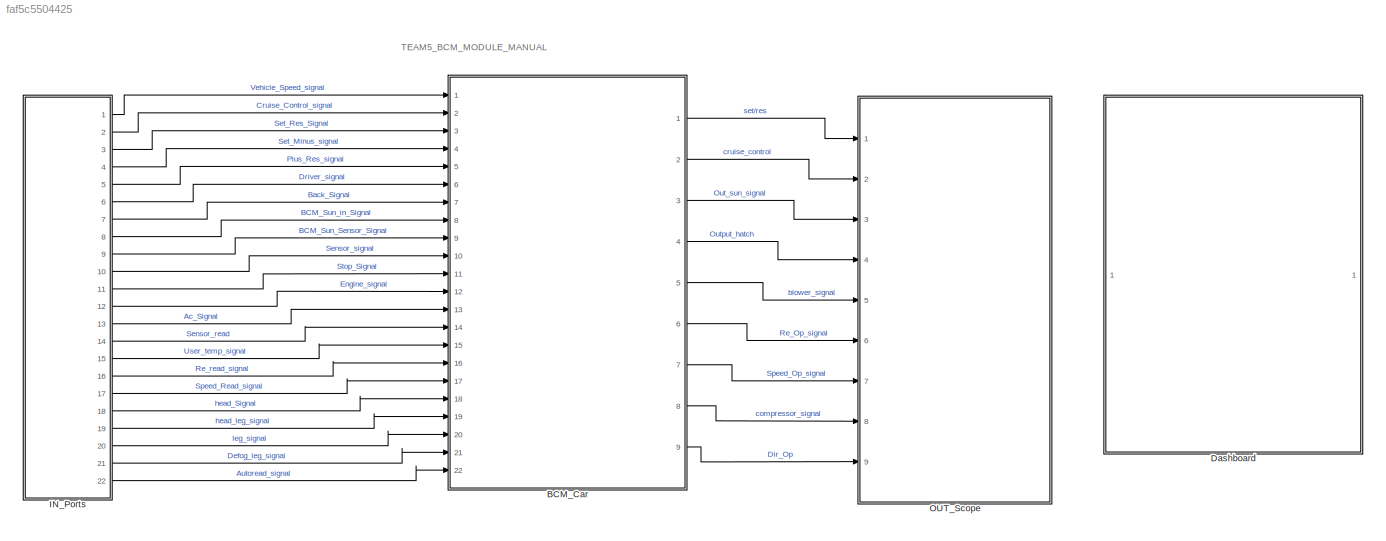
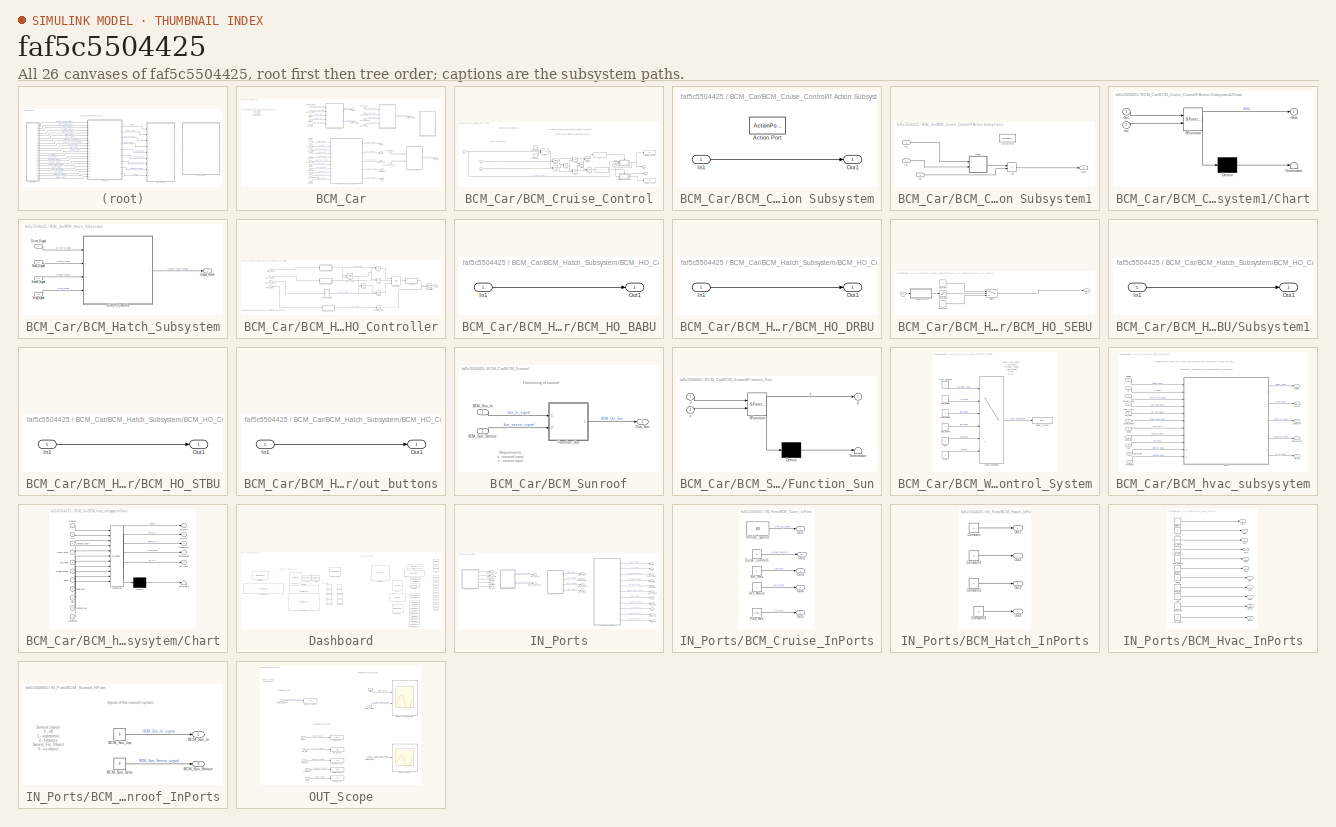
[diagram: thumbnail index - all 26 canvases of the model, root first then tree order]
MODEL slx_faf5c5504425
KIND model
CONFIG AbsTol = auto
CONFIG EnableMultiTasking = off
CONFIG FixedStep = auto
CONFIG MaxStep = auto
CONFIG MinStep = auto
CONFIG RelTol = 1e-3
CONFIG SampleTimeConstraint = Unconstrained
CONFIG SolverName = VariableStepAuto
CONFIG StartTime = 0.0
CONFIG StopTime = inf
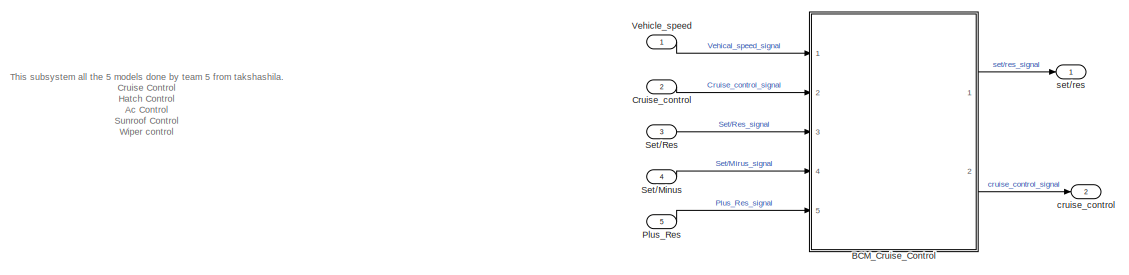
[diagram: BCM_Car - part 1/2, top left region]
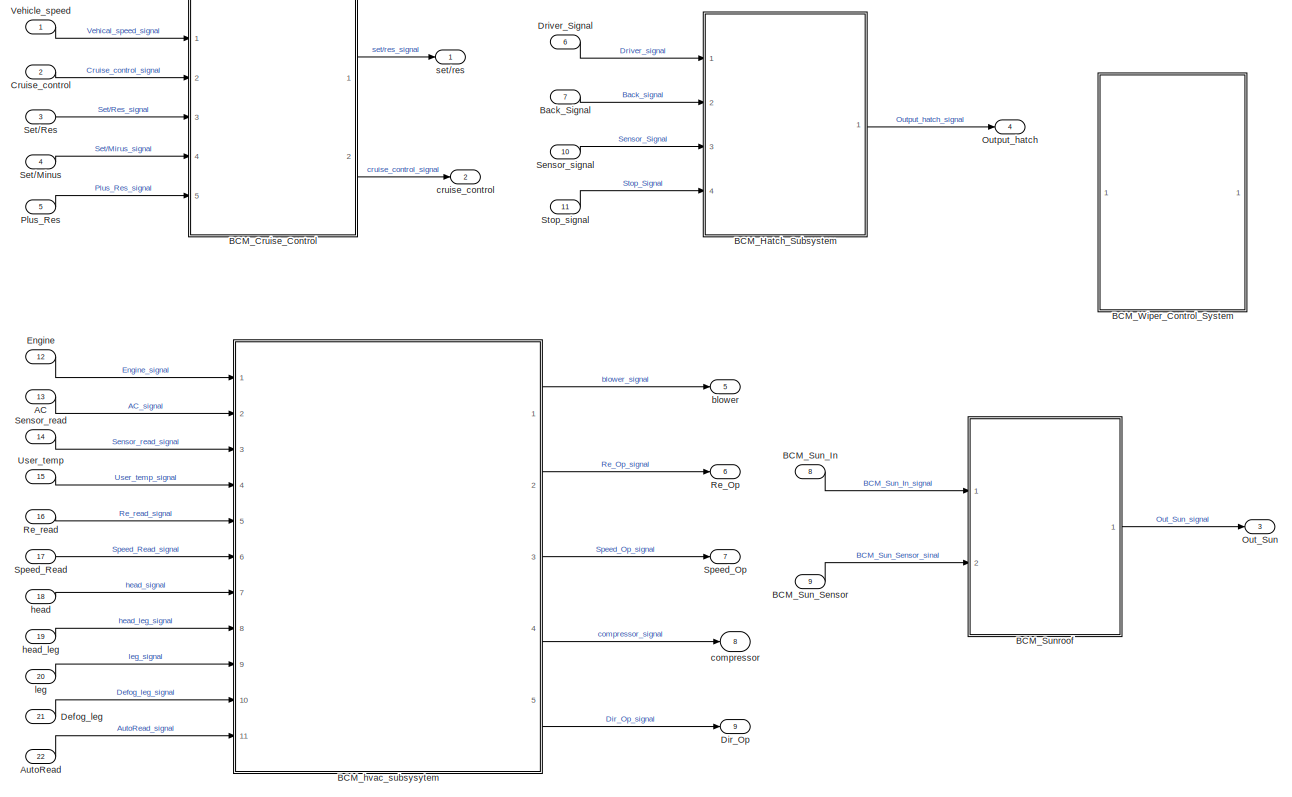
[diagram: BCM_Car - part 2/2, center side, full height]
BLOCK [SubSystem] BCM_Car
  Ports = [22, 9]
  RequestExecContextInheritance = off
BLOCK [Inport] BCM_Car/AC
  Port = 13
BLOCK [Inport] BCM_Car/AutoRead
  Port = 22
BLOCK [SubSystem] BCM_Car/BCM_Cruise_Control
  Ports = [5, 2]
  RequestExecContextInheritance = off
BLOCK [Logic] BCM_Car/BCM_Cruise_Control/AND
  AllPortsSameDT = off
  IconShape = distinctive
  OutDataTypeStr = boolean
  Ports = [2, 1]
BLOCK [Logic] BCM_Car/BCM_Cruise_Control/AND1
  AllPortsSameDT = off
  IconShape = distinctive
  OutDataTypeStr = boolean
  Ports = [2, 1]
BLOCK [Logic] BCM_Car/BCM_Cruise_Control/AND2
  AllPortsSameDT = off
  IconShape = distinctive
  OutDataTypeStr = boolean
  Ports = [2, 1]
BLOCK [Logic] BCM_Car/BCM_Cruise_Control/AND3
  AllPortsSameDT = off
  IconShape = distinctive
  OutDataTypeStr = boolean
  Ports = [2, 1]
BLOCK [Logic] BCM_Car/BCM_Cruise_Control/AND4
  AllPortsSameDT = off
  IconShape = distinctive
  OutDataTypeStr = boolean
  Ports = [2, 1]
BLOCK [Logic] BCM_Car/BCM_Cruise_Control/AND5
  AllPortsSameDT = off
  IconShape = distinctive
  OutDataTypeStr = boolean
  Ports = [2, 1]
BLOCK [Constant] BCM_Car/BCM_Cruise_Control/Constant2
BLOCK [Constant] BCM_Car/BCM_Cruise_Control/Constant4
  Value = 0
BLOCK [Display] BCM_Car/BCM_Cruise_Control/Display_Test1
  Decimation = 1
  Ports = [1]
BLOCK [Display] BCM_Car/BCM_Cruise_Control/Display_Test2
  Decimation = 1
  Ports = [1]
BLOCK [If] BCM_Car/BCM_Cruise_Control/If
  IfExpression = u1 == 1
  Ports = [1, 1]
  ShowElse = off
BLOCK [SubSystem] BCM_Car/BCM_Cruise_Control/If Action Subsystem
  Ports = [1, 1, 0, 0, 0, 0, 0, 1]
  RequestExecContextInheritance = off
  TreatAsAtomicUnit = on
BLOCK [ActionPort] BCM_Car/BCM_Cruise_Control/If Action Subsystem/Action Port
  ActionPortLabel = if(u1 == 1)
BLOCK [Inport] BCM_Car/BCM_Cruise_Control/If Action Subsystem/In1
BLOCK [Outport] BCM_Car/BCM_Cruise_Control/If Action Subsystem/Out1
BLOCK [SubSystem] BCM_Car/BCM_Cruise_Control/If Action Subsystem1
  Ports = [3, 1, 0, 0, 0, 0, 0, 1]
  RequestExecContextInheritance = off
  TreatAsAtomicUnit = on
BLOCK [ActionPort] BCM_Car/BCM_Cruise_Control/If Action Subsystem1/Action Port
  ActionPortLabel = if(u1 == 1)
BLOCK [Sum] BCM_Car/BCM_Cruise_Control/If Action Subsystem1/Add
  IconShape = rectangular
  Ports = [2, 1]
BLOCK [SubSystem] BCM_Car/BCM_Cruise_Control/If Action Subsystem1/Chart
  ErrorFcn = Stateflow.Translate.translate
  PermitHierarchicalResolution = ExplicitOnly
  Ports = [2, 1]
  RequestExecContextInheritance = off
  SFBlockType = Chart
  TreatAsAtomicUnit = on
BLOCK [Demux] BCM_Car/BCM_Cruise_Control/If Action Subsystem1/Chart/ Demux 
  Outputs = 1
  Ports = [1, 1]
BLOCK [S-Function] BCM_Car/BCM_Cruise_Control/If Action Subsystem1/Chart/ SFunction 
  EnableBusSupport = on
  FunctionName = sf_sfun
  PortCounts = [2 2]
  Ports = [2, 2]
  SFcnIsStateOwnerBlock = off
  SFunctionDeploymentMode = off
  Tag = Stateflow S-Function 1
BLOCK [Terminator] BCM_Car/BCM_Cruise_Control/If Action Subsystem1/Chart/ Terminator 
BLOCK [Outport] BCM_Car/BCM_Cruise_Control/If Action Subsystem1/Chart/data
BLOCK [Inport] BCM_Car/BCM_Cruise_Control/If Action Subsystem1/Chart/dec
BLOCK [Inport] BCM_Car/BCM_Cruise_Control/If Action Subsystem1/Chart/inc
  Port = 2
BLOCK [Inport] BCM_Car/BCM_Cruise_Control/If Action Subsystem1/In1
BLOCK [Inport] BCM_Car/BCM_Cruise_Control/If Action Subsystem1/In2
  Port = 2
BLOCK [Inport] BCM_Car/BCM_Cruise_Control/If Action Subsystem1/In3
  Port = 3
BLOCK [Outport] BCM_Car/BCM_Cruise_Control/If Action Subsystem1/Out1
BLOCK [If] BCM_Car/BCM_Cruise_Control/If1
  IfExpression = u1 == 1
  Ports = [1, 1]
  ShowElse = off
BLOCK [Inport] BCM_Car/BCM_Cruise_Control/In1
BLOCK [Inport] BCM_Car/BCM_Cruise_Control/In2
  Port = 2
BLOCK [Inport] BCM_Car/BCM_Cruise_Control/In3
  Port = 3
BLOCK [Inport] BCM_Car/BCM_Cruise_Control/In4
  Port = 4
BLOCK [Inport] BCM_Car/BCM_Cruise_Control/In5
  Port = 5
BLOCK [Logic] BCM_Car/BCM_Cruise_Control/OR
  AllPortsSameDT = off
  IconShape = distinctive
  Operator = OR
  OutDataTypeStr = boolean
  Ports = [2, 1]
BLOCK [Outport] BCM_Car/BCM_Cruise_Control/Out1
BLOCK [Outport] BCM_Car/BCM_Cruise_Control/Out2
  Port = 2
BLOCK [Switch] BCM_Car/BCM_Cruise_Control/Switch
  InputSameDT = off
  SaturateOnIntegerOverflow = off
  Threshold = 40
BLOCK [Logic] BCM_Car/BCM_Cruise_Control/XOR
  AllPortsSameDT = off
  IconShape = distinctive
  Operator = XOR
  OutDataTypeStr = boolean
  Ports = [2, 1]
BLOCK [SubSystem] BCM_Car/BCM_Hatch_Subsystem
  Ports = [4, 1]
  RequestExecContextInheritance = off
BLOCK [SubSystem] BCM_Car/BCM_Hatch_Subsystem/BCM_HO_Controller
  Ports = [4, 1]
  RequestExecContextInheritance = off
BLOCK [Logic] BCM_Car/BCM_Hatch_Subsystem/BCM_HO_Controller/AND
  AllPortsSameDT = off
  IconShape = distinctive
  OutDataTypeStr = boolean
  Ports = [2, 1]
BLOCK [Logic] BCM_Car/BCM_Hatch_Subsystem/BCM_HO_Controller/AND1
  AllPortsSameDT = off
  IconShape = distinctive
  OutDataTypeStr = boolean
  Ports = [2, 1]
BLOCK [Logic] BCM_Car/BCM_Hatch_Subsystem/BCM_HO_Controller/AND2
  AllPortsSameDT = off
  IconShape = distinctive
  OutDataTypeStr = boolean
  Ports = [2, 1]
BLOCK [SubSystem] BCM_Car/BCM_Hatch_Subsystem/BCM_HO_Controller/BCM_HO_BABU
  Ports = [1, 1]
  RequestExecContextInheritance = off
BLOCK [Inport] BCM_Car/BCM_Hatch_Subsystem/BCM_HO_Controller/BCM_HO_BABU/In1
BLOCK [Outport] BCM_Car/BCM_Hatch_Subsystem/BCM_HO_Controller/BCM_HO_BABU/Out1
BLOCK [SubSystem] BCM_Car/BCM_Hatch_Subsystem/BCM_HO_Controller/BCM_HO_DRBU
  Ports = [1, 1]
  RequestExecContextInheritance = off
BLOCK [Inport] BCM_Car/BCM_Hatch_Subsystem/BCM_HO_Controller/BCM_HO_DRBU/In1
BLOCK [Outport] BCM_Car/BCM_Hatch_Subsystem/BCM_HO_Controller/BCM_HO_DRBU/Out1
BLOCK [SubSystem] BCM_Car/BCM_Hatch_Subsystem/BCM_HO_Controller/BCM_HO_SEBU
  Ports = [1, 1]
  RequestExecContextInheritance = off
BLOCK [Constant] BCM_Car/BCM_Hatch_Subsystem/BCM_HO_Controller/BCM_HO_SEBU/Constant1
BLOCK [Constant] BCM_Car/BCM_Hatch_Subsystem/BCM_HO_Controller/BCM_HO_SEBU/Constant2
  Value = 0
BLOCK [Inport] BCM_Car/BCM_Hatch_Subsystem/BCM_HO_Controller/BCM_HO_SEBU/In1
BLOCK [Outport] BCM_Car/BCM_Hatch_Subsystem/BCM_HO_Controller/BCM_HO_SEBU/Out1
BLOCK [Saturate] BCM_Car/BCM_Hatch_Subsystem/BCM_HO_Controller/BCM_HO_SEBU/Saturation
  LowerLimit = 0
  UpperLimit = 3.6
BLOCK [SubSystem] BCM_Car/BCM_Hatch_Subsystem/BCM_HO_Controller/BCM_HO_SEBU/Subsystem1
  Ports = [1, 1]
  RequestExecContextInheritance = off
BLOCK [Inport] BCM_Car/BCM_Hatch_Subsystem/BCM_HO_Controller/BCM_HO_SEBU/Subsystem1/In1
BLOCK [Outport] BCM_Car/BCM_Hatch_Subsystem/BCM_HO_Controller/BCM_HO_SEBU/Subsystem1/Out1
BLOCK [Switch] BCM_Car/BCM_Hatch_Subsystem/BCM_HO_Controller/BCM_HO_SEBU/Switch
  Criteria = u2 > Threshold
  InputSameDT = off
  SaturateOnIntegerOverflow = off
  Threshold = 2.3
BLOCK [SubSystem] BCM_Car/BCM_Hatch_Subsystem/BCM_HO_Controller/BCM_HO_STBU
  Ports = [1, 1]
  RequestExecContextInheritance = off
BLOCK [Inport] BCM_Car/BCM_Hatch_Subsystem/BCM_HO_Controller/BCM_HO_STBU/In1
BLOCK [Outport] BCM_Car/BCM_Hatch_Subsystem/BCM_HO_Controller/BCM_HO_STBU/Out1
BLOCK [Inport] BCM_Car/BCM_Hatch_Subsystem/BCM_HO_Controller/Back_Signal
  Port = 2
BLOCK [Logic] BCM_Car/BCM_Hatch_Subsystem/BCM_HO_Controller/Condition_Stop
  AllPortsSameDT = off
  IconShape = distinctive
  Operator = NOT
  OutDataTypeStr = boolean
  Ports = [1, 1]
BLOCK [Inport] BCM_Car/BCM_Hatch_Subsystem/BCM_HO_Controller/Driver_Signal
BLOCK [Outport] BCM_Car/BCM_Hatch_Subsystem/BCM_HO_Controller/Out1
BLOCK [Logic] BCM_Car/BCM_Hatch_Subsystem/BCM_HO_Controller/Out_Buttons
  AllPortsSameDT = off
  IconShape = distinctive
  Inputs = 3
  Operator = OR
  OutDataTypeStr = boolean
  Ports = [3, 1]
BLOCK [Inport] BCM_Car/BCM_Hatch_Subsystem/BCM_HO_Controller/Sensor_signal
  Port = 3
BLOCK [Logic] BCM_Car/BCM_Hatch_Subsystem/BCM_HO_Controller/Stop_button_condition
  AllPortsSameDT = off
  IconShape = distinctive
  OutDataTypeStr = boolean
  Ports = [2, 1]
BLOCK [Inport] BCM_Car/BCM_Hatch_Subsystem/BCM_HO_Controller/Stop_signal
  Port = 4
BLOCK [Logic] BCM_Car/BCM_Hatch_Subsystem/BCM_HO_Controller/XOR
  AllPortsSameDT = off
  IconShape = distinctive
  Operator = XOR
  OutDataTypeStr = boolean
  Ports = [2, 1]
BLOCK [Logic] BCM_Car/BCM_Hatch_Subsystem/BCM_HO_Controller/XOR1
  AllPortsSameDT = off
  IconShape = distinctive
  Operator = XOR
  OutDataTypeStr = boolean
  Ports = [2, 1]
BLOCK [SubSystem] BCM_Car/BCM_Hatch_Subsystem/BCM_HO_Controller/out_buttons
  Ports = [1, 1]
  RequestExecContextInheritance = off
BLOCK [Inport] BCM_Car/BCM_Hatch_Subsystem/BCM_HO_Controller/out_buttons/In1
BLOCK [Outport] BCM_Car/BCM_Hatch_Subsystem/BCM_HO_Controller/out_buttons/Out1
BLOCK [Inport] BCM_Car/BCM_Hatch_Subsystem/Back_Signal
  Port = 2
BLOCK [Inport] BCM_Car/BCM_Hatch_Subsystem/Driver_Signal
BLOCK [Outport] BCM_Car/BCM_Hatch_Subsystem/Output_Hatch
BLOCK [Inport] BCM_Car/BCM_Hatch_Subsystem/Sensor_signal
  Port = 3
BLOCK [Inport] BCM_Car/BCM_Hatch_Subsystem/Stop_signal
  Port = 4
BLOCK [Inport] BCM_Car/BCM_Sun_In
  Port = 8
BLOCK [Inport] BCM_Car/BCM_Sun_Sensor
  Port = 9
BLOCK [SubSystem] BCM_Car/BCM_Sunroof
  Ports = [2, 1]
  RequestExecContextInheritance = off
BLOCK [Inport] BCM_Car/BCM_Sunroof/BCM_Sun_In
BLOCK [Inport] BCM_Car/BCM_Sunroof/BCM_Sun_Sensor
  Port = 2
BLOCK [SubSystem] BCM_Car/BCM_Sunroof/Function_Sun
  ErrorFcn = Stateflow.Translate.translate
  PermitHierarchicalResolution = ExplicitOnly
  Ports = [2, 1]
  RequestExecContextInheritance = off
  SFBlockType = MATLAB Function
  TreatAsAtomicUnit = on
BLOCK [Demux] BCM_Car/BCM_Sunroof/Function_Sun/ Demux 
  Outputs = 1
  Ports = [1, 1]
BLOCK [S-Function] BCM_Car/BCM_Sunroof/Function_Sun/ SFunction 
  EnableBusSupport = on
  FunctionName = sf_sfun
  PortCounts = [2 2]
  Ports = [2, 2]
  SFcnIsStateOwnerBlock = off
  SFunctionDeploymentMode = off
  Tag = Stateflow S-Function 2
BLOCK [Terminator] BCM_Car/BCM_Sunroof/Function_Sun/ Terminator 
BLOCK [Inport] BCM_Car/BCM_Sunroof/Function_Sun/u
BLOCK [Inport] BCM_Car/BCM_Sunroof/Function_Sun/v
  Port = 2
BLOCK [Outport] BCM_Car/BCM_Sunroof/Function_Sun/y
BLOCK [Outport] BCM_Car/BCM_Sunroof/Out_Sun
BLOCK [SubSystem] BCM_Car/BCM_Wiper_Control_System
  Ports = []
  RequestExecContextInheritance = off
BLOCK [Constant] BCM_Car/BCM_Wiper_Control_System/High_Speed
  Value = 3
BLOCK [Constant] BCM_Car/BCM_Wiper_Control_System/Input_Condition
BLOCK [Constant] BCM_Car/BCM_Wiper_Control_System/Low_Speed
BLOCK [Constant] BCM_Car/BCM_Wiper_Control_System/Med_Speed
  Value = 2
BLOCK [Constant] BCM_Car/BCM_Wiper_Control_System/Mist
  Value = 4
BLOCK [Constant] BCM_Car/BCM_Wiper_Control_System/Off
  Value = 5
BLOCK [MultiPortSwitch] BCM_Car/BCM_Wiper_Control_System/Wiper_Conditions
  InputSameDT = off
  Inputs = 5
  Ports = [6, 1]
  SaturateOnIntegerOverflow = off
BLOCK [Display] BCM_Car/BCM_Wiper_Control_System/Wiper_Output
  Decimation = 1
  Ports = [1]
BLOCK [SubSystem] BCM_Car/BCM_hvac_subsysytem
  Ports = [11, 5]
  RequestExecContextInheritance = off
BLOCK [Inport] BCM_Car/BCM_hvac_subsysytem/AC
  Port = 2
BLOCK [Inport] BCM_Car/BCM_hvac_subsysytem/AutoRead
  Port = 11
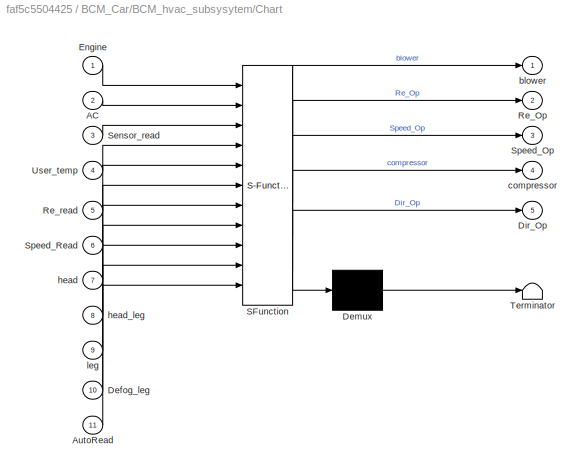
BLOCK [SubSystem] BCM_Car/BCM_hvac_subsysytem/Chart
  ErrorFcn = Stateflow.Translate.translate
  PermitHierarchicalResolution = ExplicitOnly
  Ports = [11, 5]
  RequestExecContextInheritance = off
  SFBlockType = Chart
  TreatAsAtomicUnit = on
BLOCK [Demux] BCM_Car/BCM_hvac_subsysytem/Chart/ Demux 
  Outputs = 1
  Ports = [1, 1]
BLOCK [S-Function] BCM_Car/BCM_hvac_subsysytem/Chart/ SFunction 
  EnableBusSupport = on
  FunctionName = sf_sfun
  PortCounts = [11 6]
  Ports = [11, 6]
  SFcnIsStateOwnerBlock = off
  SFunctionDeploymentMode = off
  Tag = Stateflow S-Function 3
BLOCK [Terminator] BCM_Car/BCM_hvac_subsysytem/Chart/ Terminator 
BLOCK [Inport] BCM_Car/BCM_hvac_subsysytem/Chart/AC
  Port = 2
BLOCK [Inport] BCM_Car/BCM_hvac_subsysytem/Chart/AutoRead
  Port = 11
BLOCK [Inport] BCM_Car/BCM_hvac_subsysytem/Chart/Defog_leg
  Port = 10
BLOCK [Outport] BCM_Car/BCM_hvac_subsysytem/Chart/Dir_Op
  Port = 5
BLOCK [Inport] BCM_Car/BCM_hvac_subsysytem/Chart/Engine
BLOCK [Outport] BCM_Car/BCM_hvac_subsysytem/Chart/Re_Op
  Port = 2
BLOCK [Inport] BCM_Car/BCM_hvac_subsysytem/Chart/Re_read
  Port = 5
BLOCK [Inport] BCM_Car/BCM_hvac_subsysytem/Chart/Sensor_read
  Port = 3
BLOCK [Outport] BCM_Car/BCM_hvac_subsysytem/Chart/Speed_Op
  Port = 3
BLOCK [Inport] BCM_Car/BCM_hvac_subsysytem/Chart/Speed_Read
  Port = 6
BLOCK [Inport] BCM_Car/BCM_hvac_subsysytem/Chart/User_temp
  Port = 4
BLOCK [Outport] BCM_Car/BCM_hvac_subsysytem/Chart/blower
BLOCK [Outport] BCM_Car/BCM_hvac_subsysytem/Chart/compressor
  Port = 4
BLOCK [Inport] BCM_Car/BCM_hvac_subsysytem/Chart/head
  Port = 7
BLOCK [Inport] BCM_Car/BCM_hvac_subsysytem/Chart/head_leg
  Port = 8
BLOCK [Inport] BCM_Car/BCM_hvac_subsysytem/Chart/leg
  Port = 9
BLOCK [Inport] BCM_Car/BCM_hvac_subsysytem/Defog_leg
  Port = 10
BLOCK [Outport] BCM_Car/BCM_hvac_subsysytem/Dir_Op
  Port = 5
BLOCK [Inport] BCM_Car/BCM_hvac_subsysytem/Engine
BLOCK [Outport] BCM_Car/BCM_hvac_subsysytem/Re-Op
  Port = 2
BLOCK [Inport] BCM_Car/BCM_hvac_subsysytem/Re_read
  Port = 5
BLOCK [Inport] BCM_Car/BCM_hvac_subsysytem/Sensor_read
  Port = 3
BLOCK [Outport] BCM_Car/BCM_hvac_subsysytem/Speed_OP
  Port = 3
BLOCK [Inport] BCM_Car/BCM_hvac_subsysytem/Speed_Read
  Port = 6
BLOCK [Inport] BCM_Car/BCM_hvac_subsysytem/User_temp
  Port = 4
BLOCK [Outport] BCM_Car/BCM_hvac_subsysytem/blower
BLOCK [Outport] BCM_Car/BCM_hvac_subsysytem/compressor
  Port = 4
BLOCK [Inport] BCM_Car/BCM_hvac_subsysytem/head
  Port = 7
BLOCK [Inport] BCM_Car/BCM_hvac_subsysytem/head_leg
  Port = 8
BLOCK [Inport] BCM_Car/BCM_hvac_subsysytem/leg
  Port = 9
BLOCK [Inport] BCM_Car/Back_Signal
  Port = 7
BLOCK [Inport] BCM_Car/Cruise_control
  Port = 2
BLOCK [Inport] BCM_Car/Defog_leg
  Port = 21
BLOCK [Outport] BCM_Car/Dir_Op
  Port = 9
BLOCK [Inport] BCM_Car/Driver_Signal
  Port = 6
BLOCK [Inport] BCM_Car/Engine
  Port = 12
BLOCK [Outport] BCM_Car/Out_Sun
  Port = 3
BLOCK [Outport] BCM_Car/Output_hatch
  Port = 4
BLOCK [Inport] BCM_Car/Plus_Res
  Port = 5
BLOCK [Outport] BCM_Car/Re_Op
  Port = 6
BLOCK [Inport] BCM_Car/Re_read
  Port = 16
BLOCK [Inport] BCM_Car/Sensor_read
  Port = 14
BLOCK [Inport] BCM_Car/Sensor_signal
  Port = 10
BLOCK [Inport] BCM_Car/Set//Minus
  Port = 4
BLOCK [Inport] BCM_Car/Set//Res
  Port = 3
BLOCK [Outport] BCM_Car/Speed_Op
  Port = 7
BLOCK [Inport] BCM_Car/Speed_Read
  Port = 17
BLOCK [Inport] BCM_Car/Stop_signal
  Port = 11
BLOCK [Inport] BCM_Car/User_temp
  Port = 15
BLOCK [Inport] BCM_Car/Vehicle_speed
BLOCK [Outport] BCM_Car/blower
  Port = 5
BLOCK [Outport] BCM_Car/compressor
  Port = 8
BLOCK [Outport] BCM_Car/cruise_control
  Port = 2
BLOCK [Inport] BCM_Car/head
  Port = 18
BLOCK [Inport] BCM_Car/head_leg
  Port = 19
BLOCK [Inport] BCM_Car/leg
  Port = 20
BLOCK [Outport] BCM_Car/set//res
BLOCK [SubSystem] Dashboard
  Ports = []
  RequestExecContextInheritance = off
BLOCK [DisplayBlock] Dashboard/Display5
  Format = short
  Transparency = 1
BLOCK [DisplayBlock] Dashboard/Display6
  Format = short
  Transparency = 1
BLOCK [CustomWebBlock] Dashboard/Horizontal Gauge
  Configuration = {"components":[{"name":"LinearScaleComponent","settings":{"bounds":{"max":15,"min":0,"tickInterval":"auto"},"internalTickHeightScaleFactor":0.5,"labelColor":[250,245,199],"labelFont":{"font":"Arial","fontSize":12},"labelTransparency":1,"needleImage":{"size":[21,75],"src":"data:image\/svg+xml;base64,PHN2ZyB4bWxucz0iaHR0cDovL3d3dy53My5vcmcvMjAwMC9zdmciIHhtbG5zOnhsaW5rPSJodHRwOi8vd3d3LnczLm9yZy8xOTk5...<+3787ch>
  ShowInitialText = on
BLOCK [KnobBlock] Dashboard/Knob
BLOCK [KnobBlock] Dashboard/Knob1
  ScaleMax = 50
BLOCK [LampBlock] Dashboard/Lamp
BLOCK [LampBlock] Dashboard/Lamp3
BLOCK [LampBlock] Dashboard/Lamp4
BLOCK [LampBlock] Dashboard/Lamp5
BLOCK [LampBlock] Dashboard/Lamp6
BLOCK [LampBlock] Dashboard/Lamp7
BLOCK [LampBlock] Dashboard/Lamp8
BLOCK [PushButtonBlock] Dashboard/Push Button2
  ButtonText = SET-
BLOCK [PushButtonBlock] Dashboard/Push Button3
  ButtonText = +RES
BLOCK [RotarySwitchBlock] Dashboard/Rotary Switch
BLOCK [RotarySwitchBlock] Dashboard/Rotary Switch1
BLOCK [SliderBlock] Dashboard/Slider
  ScaleMax = 50
BLOCK [SliderSwitchBlock] Dashboard/Slider Switch
BLOCK [SliderSwitchBlock] Dashboard/Slider Switch1
BLOCK [SliderSwitchBlock] Dashboard/Slider Switch10
BLOCK [SliderSwitchBlock] Dashboard/Slider Switch2
BLOCK [SliderSwitchBlock] Dashboard/Slider Switch3
BLOCK [SliderSwitchBlock] Dashboard/Slider Switch4
BLOCK [SliderSwitchBlock] Dashboard/Slider Switch5
BLOCK [SliderSwitchBlock] Dashboard/Slider Switch6
BLOCK [SliderSwitchBlock] Dashboard/Slider Switch7
BLOCK [SliderSwitchBlock] Dashboard/Slider Switch8
BLOCK [SliderSwitchBlock] Dashboard/Slider Switch9
BLOCK [ToggleSwitchBlock] Dashboard/Toggle Switch1
BLOCK [ToggleSwitchBlock] Dashboard/Toggle Switch2
BLOCK [ToggleSwitchBlock] Dashboard/Toggle Switch3
BLOCK [ToggleSwitchBlock] Dashboard/Toggle Switch4
BLOCK [RotarySwitchBlock] Dashboard/Wiper_Input_Switch
BLOCK [SubSystem] IN_Ports
  Ports = [0, 22]
  RequestExecContextInheritance = off
BLOCK [Outport] IN_Ports/AC
  Port = 13
BLOCK [Outport] IN_Ports/AutoRead
  Port = 22
BLOCK [SubSystem] IN_Ports/BCM_Cruise_InPorts
  Ports = [0, 5]
  RequestExecContextInheritance = off
BLOCK [Constant] IN_Ports/BCM_Cruise_InPorts/Cruise_Control1
  Value = 0
BLOCK [Outport] IN_Ports/BCM_Cruise_InPorts/Out1
BLOCK [Outport] IN_Ports/BCM_Cruise_InPorts/Out2
  Port = 2
BLOCK [Outport] IN_Ports/BCM_Cruise_InPorts/Out3
  Port = 3
BLOCK [Outport] IN_Ports/BCM_Cruise_InPorts/Out4
  Port = 4
BLOCK [Outport] IN_Ports/BCM_Cruise_InPorts/Out5
  Port = 5
BLOCK [Constant] IN_Ports/BCM_Cruise_InPorts/Plus_Res
  Value = NaN
BLOCK [Constant] IN_Ports/BCM_Cruise_InPorts/Set_Minus
BLOCK [Constant] IN_Ports/BCM_Cruise_InPorts/Set_Res
  Value = 0
BLOCK [Constant] IN_Ports/BCM_Cruise_InPorts/Vehicle_Speed
  Value = 40
BLOCK [SubSystem] IN_Ports/BCM_Hatch_InPorts
  Ports = [0, 4]
  RequestExecContextInheritance = off
BLOCK [Constant] IN_Ports/BCM_Hatch_InPorts/Constant
  Value = 0
BLOCK [Constant] IN_Ports/BCM_Hatch_InPorts/Constant1
  Value = 0
BLOCK [Constant] IN_Ports/BCM_Hatch_InPorts/Constant2
  Value = 0
BLOCK [Constant] IN_Ports/BCM_Hatch_InPorts/Constant3
  Value = 0
BLOCK [Outport] IN_Ports/BCM_Hatch_InPorts/Out1
BLOCK [Outport] IN_Ports/BCM_Hatch_InPorts/Out2
  Port = 2
BLOCK [Outport] IN_Ports/BCM_Hatch_InPorts/Out3
  Port = 3
BLOCK [Outport] IN_Ports/BCM_Hatch_InPorts/Out4
  Port = 4
BLOCK [SubSystem] IN_Ports/BCM_Hvac_InPorts
  Ports = [0, 11]
  RequestExecContextInheritance = off
BLOCK [Constant] IN_Ports/BCM_Hvac_InPorts/AC_S
BLOCK [Constant] IN_Ports/BCM_Hvac_InPorts/Auto_Read
  Value = 0
BLOCK [Constant] IN_Ports/BCM_Hvac_InPorts/Car_Temp
  Value = 37.03367604015454
BLOCK [Constant] IN_Ports/BCM_Hvac_InPorts/Defog_Leg
  Value = 0
BLOCK [Constant] IN_Ports/BCM_Hvac_InPorts/Engine_S
BLOCK [Constant] IN_Ports/BCM_Hvac_InPorts/Head
  Value = 0
BLOCK [Constant] IN_Ports/BCM_Hvac_InPorts/Head_leg
  Value = 0
BLOCK [Constant] IN_Ports/BCM_Hvac_InPorts/Leg
  Value = 0
BLOCK [Outport] IN_Ports/BCM_Hvac_InPorts/Out1
BLOCK [Outport] IN_Ports/BCM_Hvac_InPorts/Out10
  Port = 10
BLOCK [Outport] IN_Ports/BCM_Hvac_InPorts/Out11
  Port = 11
BLOCK [Outport] IN_Ports/BCM_Hvac_InPorts/Out2
  Port = 2
BLOCK [Outport] IN_Ports/BCM_Hvac_InPorts/Out3
  Port = 3
BLOCK [Outport] IN_Ports/BCM_Hvac_InPorts/Out4
  Port = 4
BLOCK [Outport] IN_Ports/BCM_Hvac_InPorts/Out5
  Port = 5
BLOCK [Outport] IN_Ports/BCM_Hvac_InPorts/Out6
  Port = 6
BLOCK [Outport] IN_Ports/BCM_Hvac_InPorts/Out7
  Port = 7
BLOCK [Outport] IN_Ports/BCM_Hvac_InPorts/Out8
  Port = 8
BLOCK [Outport] IN_Ports/BCM_Hvac_InPorts/Out9
  Port = 9
BLOCK [Constant] IN_Ports/BCM_Hvac_InPorts/Recirculation
BLOCK [Constant] IN_Ports/BCM_Hvac_InPorts/Speed_R
  Value = 2
BLOCK [Constant] IN_Ports/BCM_Hvac_InPorts/User_Temp
  Value = 17.16517857142857
BLOCK [Outport] IN_Ports/BCM_Sun_In
  Port = 8
BLOCK [Outport] IN_Ports/BCM_Sun_Sensor
  Port = 9
BLOCK [SubSystem] IN_Ports/BCM_Sunroof_InPorts
  Ports = [0, 2]
  RequestExecContextInheritance = off
BLOCK [Outport] IN_Ports/BCM_Sunroof_InPorts/BCM_Sun_In
BLOCK [Constant] IN_Ports/BCM_Sunroof_InPorts/BCM_Sun_Inp
  Value = 0
BLOCK [Constant] IN_Ports/BCM_Sunroof_InPorts/BCM_Sun_Sens
  Value = 0
BLOCK [Outport] IN_Ports/BCM_Sunroof_InPorts/BCM_Sun_Sensor
  Port = 2
BLOCK [Outport] IN_Ports/Back_signal
  Port = 7
BLOCK [Outport] IN_Ports/Cruise_Control
  Port = 2
BLOCK [Outport] IN_Ports/Defog_leg
  Port = 21
BLOCK [Outport] IN_Ports/Driver_signal
  Port = 6
BLOCK [Outport] IN_Ports/Engine
  Port = 12
BLOCK [Outport] IN_Ports/Plus_Res
  Port = 5
BLOCK [Outport] IN_Ports/Re_read
  Port = 16
BLOCK [Outport] IN_Ports/Sensor_read
  Port = 14
BLOCK [Outport] IN_Ports/Sensor_signal
  Port = 10
BLOCK [Outport] IN_Ports/Set_Minus
  Port = 4
BLOCK [Outport] IN_Ports/Set_Res
  Port = 3
BLOCK [Outport] IN_Ports/Speed_Read
  Port = 17
BLOCK [Outport] IN_Ports/Stop_signal
  Port = 11
BLOCK [Outport] IN_Ports/User_temp
  Port = 15
BLOCK [Outport] IN_Ports/Vehicle_Speed
BLOCK [Outport] IN_Ports/head
  Port = 18
BLOCK [Outport] IN_Ports/head_leg
  Port = 19
BLOCK [Outport] IN_Ports/leg
  Port = 20
BLOCK [SubSystem] OUT_Scope
  Ports = [9]
  RequestExecContextInheritance = off
BLOCK [Scope] OUT_Scope/Airbag_And_CruiseControl
  Floating = off
  NumInputPorts = 2
  Ports = [2]
  ScopeSpecificationString = Simulink.scopes.TimeScopeBlockCfg('CurrentConfiguration', extmgr.ConfigurationSet(extmgr.Configuration('Core','General UI',true),extmgr.Configuration('Core','Source UI',true),extmgr.Configuration('Sources','WiredSimulink',true,'DataLoggingVariableName','ScopeData1'),extmgr.Configuration('Visuals','Time Domain',true,'SerializedDisplays',{struct('MinYLimReal','-0.125','MaxYLimReal','1.125','YLabelRe...<+2773ch>
BLOCK [Scope] OUT_Scope/BCM_HO_Output
  Floating = off
  NumInputPorts = 1
  Ports = [1]
  ScopeSpecificationString = Simulink.scopes.TimeScopeBlockCfg('CurrentConfiguration', extmgr.ConfigurationSet(extmgr.Configuration('Core','General UI',true),extmgr.Configuration('Core','Source UI',true),extmgr.Configuration('Sources','WiredSimulink',true,'DataLoggingVariableName','ScopeData1'),extmgr.Configuration('Visuals','Time Domain',true),extmgr.Configuration('Tools','Plot Navigation',true),extmgr.Configuration('Tools',...<+58ch>
BLOCK [Inport] OUT_Scope/BCM_Out_Sun
  Port = 3
BLOCK [Display] OUT_Scope/BCM_Sun_Output
  Decimation = 1
  Ports = [1]
BLOCK [Inport] OUT_Scope/Dir_Op
  Port = 9
BLOCK [Display] OUT_Scope/Dir_Op_out
  Decimation = 1
  Ports = [1]
BLOCK [Inport] OUT_Scope/Output_hatch
  Port = 4
BLOCK [Inport] OUT_Scope/Re_Op
  Port = 6
BLOCK [Display] OUT_Scope/Re_Op_out
  Decimation = 1
  Ports = [1]
BLOCK [Inport] OUT_Scope/Speed_R
  Port = 7
BLOCK [Display] OUT_Scope/Speed_R_out
  Decimation = 1
  Ports = [1]
BLOCK [Inport] OUT_Scope/blower
  Port = 5
BLOCK [Display] OUT_Scope/blower_out
  Decimation = 1
  Ports = [1]
BLOCK [Inport] OUT_Scope/compressor
  Port = 8
BLOCK [Display] OUT_Scope/compressor_out
  Decimation = 1
  Ports = [1]
BLOCK [Inport] OUT_Scope/cruise_control
  Port = 2
BLOCK [Inport] OUT_Scope/set//res
ANNOTATION (root): TEAM5_BCM_MODULE_MANUAL
ANNOTATION BCM_Car: This subsystem all the 5 models done by team 5 from takshashila. Cruise Control Hatch Control Ac Control Sunroof Control Wiper control
ANNOTATION BCM_Car/BCM_Cruise_Control: CRUISE CONTROL BCM MODULE
ANNOTATION BCM_Car/BCM_Cruise_Control: References: GMC Sierra/Sierra denali owner's manual 2020
ANNOTATION BCM_Car/BCM_Cruise_Control: Requirements: There are 4 buttons for cruise control. Cruise control on/off, Cruise with SET/RES on/off, SET- and +RES.
ANNOTATION BCM_Car/BCM_Cruise_Control: Cruise_Control_System
ANNOTATION BCM_Car/BCM_Hatch_Subsystem/BCM_HO_Controller: Requirements: There are 4 buttons for hatch control. Driver signal, back signal, sensor signal and stop signal. on pressing the driver button or back button, hatch should open and on pressing stop the hatch should close. On sensor detection also the hatch should open
ANNOTATION BCM_Car/BCM_Sunroof: Functioning of sunroof
ANNOTATION BCM_Car/BCM_Sunroof: Requierments u - sunroof input v - sensor input
ANNOTATION BCM_Car/BCM_Wiper_Control_System: Wiper_Input_Switch 1:Low Speed 2:Medium Speed 3:High Speed 4:Mist 5:Off In today’s automotive industry, the issue of driver safety and comfort is of great importance. An automatic windshield wiper system is of great aid in such cases. It betters the driving experience and improvises the safety factor of a vehicle by converting the manual windshield wiper system into an automatic system. By taking ...<+289ch>
ANNOTATION BCM_Car/BCM_hvac_subsysytem: Requirements: There are 2 knobs and 8 switches and sensor input to read the temperature
ANNOTATION BCM_Car/BCM_hvac_subsysytem: References: GMC Sierra/Sierra denali owner's manual 2020
ANNOTATION Dashboard: AC_system_Dashboard
ANNOTATION Dashboard: Cruise_Subsystem_Dashboard
ANNOTATION Dashboard: Subsystem1
ANNOTATION IN_Ports/BCM_Sunroof_InPorts: Inputs of the sunroof system
ANNOTATION IN_Ports/BCM_Sunroof_InPorts: Sunroof_Inputs 0 - off 1 - siglepress 2 - fullpress Sensor_For_Object 0 - no object 1 - object
ANNOTATION OUT_Scope: Output of the sunroof
ANNOTATION OUT_Scope: Output for Airbag and cruise control
ANNOTATION OUT_Scope: Outputs_Sunroof 1-15 : movement
ANNOTATION OUT_Scope: Output of the AC subsystem
LINE BCM_Car/AC:1 -> BCM_Car/BCM_hvac_subsysytem:2
LINE BCM_Car/AutoRead:1 -> BCM_Car/BCM_hvac_subsysytem:11
NET BCM_Car/BCM_Cruise_Control/AND1:1 -> BCM_Car/BCM_Cruise_Control/AND5:2, BCM_Car/BCM_Cruise_Control/XOR:2
NET BCM_Car/BCM_Cruise_Control/AND2:1 -> BCM_Car/BCM_Cruise_Control/AND:1, BCM_Car/BCM_Cruise_Control/OR:1
NET BCM_Car/BCM_Cruise_Control/AND3:1 -> BCM_Car/BCM_Cruise_Control/AND1:2, BCM_Car/BCM_Cruise_Control/OR:2
LINE BCM_Car/BCM_Cruise_Control/AND4:1 -> BCM_Car/BCM_Cruise_Control/If1:1
LINE BCM_Car/BCM_Cruise_Control/AND5:1 -> BCM_Car/BCM_Cruise_Control/If:1
NET BCM_Car/BCM_Cruise_Control/AND:1 -> BCM_Car/BCM_Cruise_Control/AND4:1, BCM_Car/BCM_Cruise_Control/XOR:1
LINE BCM_Car/BCM_Cruise_Control/Constant2:1 -> BCM_Car/BCM_Cruise_Control/Switch:1
LINE BCM_Car/BCM_Cruise_Control/Constant4:1 -> BCM_Car/BCM_Cruise_Control/Switch:3
LINE BCM_Car/BCM_Cruise_Control/If Action Subsystem/In1:1 -> BCM_Car/BCM_Cruise_Control/If Action Subsystem/Out1:1
LINE BCM_Car/BCM_Cruise_Control/If Action Subsystem1/Add:1 -> BCM_Car/BCM_Cruise_Control/If Action Subsystem1/Out1:1
LINE BCM_Car/BCM_Cruise_Control/If Action Subsystem1/Chart:1 -> BCM_Car/BCM_Cruise_Control/If Action Subsystem1/Add:1
LINE BCM_Car/BCM_Cruise_Control/If Action Subsystem1/In1:1 -> BCM_Car/BCM_Cruise_Control/If Action Subsystem1/Add:2
LINE BCM_Car/BCM_Cruise_Control/If Action Subsystem1/In2:1 -> BCM_Car/BCM_Cruise_Control/If Action Subsystem1/Chart:1
LINE BCM_Car/BCM_Cruise_Control/If Action Subsystem1/In3:1 -> BCM_Car/BCM_Cruise_Control/If Action Subsystem1/Chart:2
NET BCM_Car/BCM_Cruise_Control/If Action Subsystem1:1 -> BCM_Car/BCM_Cruise_Control/Display_Test1:1, BCM_Car/BCM_Cruise_Control/If Action Subsystem:1, BCM_Car/BCM_Cruise_Control/Out1:1
NET BCM_Car/BCM_Cruise_Control/If Action Subsystem:1 -> BCM_Car/BCM_Cruise_Control/Display_Test2:1, BCM_Car/BCM_Cruise_Control/Out2:1
LINE BCM_Car/BCM_Cruise_Control/If1:1 -> BCM_Car/BCM_Cruise_Control/If Action Subsystem1:ifaction
LINE BCM_Car/BCM_Cruise_Control/If:1 -> BCM_Car/BCM_Cruise_Control/If Action Subsystem:ifaction
NET BCM_Car/BCM_Cruise_Control/In1:1 -> BCM_Car/BCM_Cruise_Control/If Action Subsystem1:1, BCM_Car/BCM_Cruise_Control/Switch:2
LINE BCM_Car/BCM_Cruise_Control/In2:1 -> BCM_Car/BCM_Cruise_Control/AND2:2
LINE BCM_Car/BCM_Cruise_Control/In3:1 -> BCM_Car/BCM_Cruise_Control/AND3:2
LINE BCM_Car/BCM_Cruise_Control/In4:1 -> BCM_Car/BCM_Cruise_Control/If Action Subsystem1:2
LINE BCM_Car/BCM_Cruise_Control/In5:1 -> BCM_Car/BCM_Cruise_Control/If Action Subsystem1:3
NET BCM_Car/BCM_Cruise_Control/OR:1 -> BCM_Car/BCM_Cruise_Control/AND1:1, BCM_Car/BCM_Cruise_Control/AND:2
NET BCM_Car/BCM_Cruise_Control/Switch:1 -> BCM_Car/BCM_Cruise_Control/AND2:1, BCM_Car/BCM_Cruise_Control/AND3:1
NET BCM_Car/BCM_Cruise_Control/XOR:1 -> BCM_Car/BCM_Cruise_Control/AND4:2, BCM_Car/BCM_Cruise_Control/AND5:1
LINE BCM_Car/BCM_Cruise_Control:1 -> BCM_Car/set//res:1
LINE BCM_Car/BCM_Cruise_Control:2 -> BCM_Car/cruise_control:1
LINE BCM_Car/BCM_Hatch_Subsystem/BCM_HO_Controller/AND1:1 -> BCM_Car/BCM_Hatch_Subsystem/BCM_HO_Controller/Out_Buttons:3
LINE BCM_Car/BCM_Hatch_Subsystem/BCM_HO_Controller/AND2:1 -> BCM_Car/BCM_Hatch_Subsystem/BCM_HO_Controller/Out_Buttons:2
LINE BCM_Car/BCM_Hatch_Subsystem/BCM_HO_Controller/AND:1 -> BCM_Car/BCM_Hatch_Subsystem/BCM_HO_Controller/Out_Buttons:1
LINE BCM_Car/BCM_Hatch_Subsystem/BCM_HO_Controller/BCM_HO_BABU/In1:1 -> BCM_Car/BCM_Hatch_Subsystem/BCM_HO_Controller/BCM_HO_BABU/Out1:1
NET BCM_Car/BCM_Hatch_Subsystem/BCM_HO_Controller/BCM_HO_BABU:1 -> BCM_Car/BCM_Hatch_Subsystem/BCM_HO_Controller/AND2:2, BCM_Car/BCM_Hatch_Subsystem/BCM_HO_Controller/XOR:2
LINE BCM_Car/BCM_Hatch_Subsystem/BCM_HO_Controller/BCM_HO_DRBU/In1:1 -> BCM_Car/BCM_Hatch_Subsystem/BCM_HO_Controller/BCM_HO_DRBU/Out1:1
NET BCM_Car/BCM_Hatch_Subsystem/BCM_HO_Controller/BCM_HO_DRBU:1 -> BCM_Car/BCM_Hatch_Subsystem/BCM_HO_Controller/AND:1, BCM_Car/BCM_Hatch_Subsystem/BCM_HO_Controller/XOR:1
LINE BCM_Car/BCM_Hatch_Subsystem/BCM_HO_Controller/BCM_HO_SEBU/Constant1:1 -> BCM_Car/BCM_Hatch_Subsystem/BCM_HO_Controller/BCM_HO_SEBU/Switch:1
LINE BCM_Car/BCM_Hatch_Subsystem/BCM_HO_Controller/BCM_HO_SEBU/Constant2:1 -> BCM_Car/BCM_Hatch_Subsystem/BCM_HO_Controller/BCM_HO_SEBU/Switch:3
LINE BCM_Car/BCM_Hatch_Subsystem/BCM_HO_Controller/BCM_HO_SEBU/In1:1 -> BCM_Car/BCM_Hatch_Subsystem/BCM_HO_Controller/BCM_HO_SEBU/Subsystem1:1
LINE BCM_Car/BCM_Hatch_Subsystem/BCM_HO_Controller/BCM_HO_SEBU/Saturation:1 -> BCM_Car/BCM_Hatch_Subsystem/BCM_HO_Controller/BCM_HO_SEBU/Switch:2
LINE BCM_Car/BCM_Hatch_Subsystem/BCM_HO_Controller/BCM_HO_SEBU/Subsystem1/In1:1 -> BCM_Car/BCM_Hatch_Subsystem/BCM_HO_Controller/BCM_HO_SEBU/Subsystem1/Out1:1
LINE BCM_Car/BCM_Hatch_Subsystem/BCM_HO_Controller/BCM_HO_SEBU/Subsystem1:1 -> BCM_Car/BCM_Hatch_Subsystem/BCM_HO_Controller/BCM_HO_SEBU/Saturation:1
LINE BCM_Car/BCM_Hatch_Subsystem/BCM_HO_Controller/BCM_HO_SEBU/Switch:1 -> BCM_Car/BCM_Hatch_Subsystem/BCM_HO_Controller/BCM_HO_SEBU/Out1:1
NET BCM_Car/BCM_Hatch_Subsystem/BCM_HO_Controller/BCM_HO_SEBU:1 -> BCM_Car/BCM_Hatch_Subsystem/BCM_HO_Controller/AND1:2, BCM_Car/BCM_Hatch_Subsystem/BCM_HO_Controller/XOR1:2
LINE BCM_Car/BCM_Hatch_Subsystem/BCM_HO_Controller/BCM_HO_STBU/In1:1 -> BCM_Car/BCM_Hatch_Subsystem/BCM_HO_Controller/BCM_HO_STBU/Out1:1
LINE BCM_Car/BCM_Hatch_Subsystem/BCM_HO_Controller/BCM_HO_STBU:1 -> BCM_Car/BCM_Hatch_Subsystem/BCM_HO_Controller/Condition_Stop:1
LINE BCM_Car/BCM_Hatch_Subsystem/BCM_HO_Controller/Back_Signal:1 -> BCM_Car/BCM_Hatch_Subsystem/BCM_HO_Controller/BCM_HO_BABU:1
LINE BCM_Car/BCM_Hatch_Subsystem/BCM_HO_Controller/Condition_Stop:1 -> BCM_Car/BCM_Hatch_Subsystem/BCM_HO_Controller/Stop_button_condition:2
LINE BCM_Car/BCM_Hatch_Subsystem/BCM_HO_Controller/Driver_Signal:1 -> BCM_Car/BCM_Hatch_Subsystem/BCM_HO_Controller/BCM_HO_DRBU:1
LINE BCM_Car/BCM_Hatch_Subsystem/BCM_HO_Controller/Out_Buttons:1 -> BCM_Car/BCM_Hatch_Subsystem/BCM_HO_Controller/out_buttons:1
LINE BCM_Car/BCM_Hatch_Subsystem/BCM_HO_Controller/Sensor_signal:1 -> BCM_Car/BCM_Hatch_Subsystem/BCM_HO_Controller/BCM_HO_SEBU:1
LINE BCM_Car/BCM_Hatch_Subsystem/BCM_HO_Controller/Stop_button_condition:1 -> BCM_Car/BCM_Hatch_Subsystem/BCM_HO_Controller/Out1:1
LINE BCM_Car/BCM_Hatch_Subsystem/BCM_HO_Controller/Stop_signal:1 -> BCM_Car/BCM_Hatch_Subsystem/BCM_HO_Controller/BCM_HO_STBU:1
LINE BCM_Car/BCM_Hatch_Subsystem/BCM_HO_Controller/XOR1:1 -> BCM_Car/BCM_Hatch_Subsystem/BCM_HO_Controller/AND1:1
NET BCM_Car/BCM_Hatch_Subsystem/BCM_HO_Controller/XOR:1 -> BCM_Car/BCM_Hatch_Subsystem/BCM_HO_Controller/AND2:1, BCM_Car/BCM_Hatch_Subsystem/BCM_HO_Controller/AND:2, BCM_Car/BCM_Hatch_Subsystem/BCM_HO_Controller/XOR1:1
LINE BCM_Car/BCM_Hatch_Subsystem/BCM_HO_Controller/out_buttons/In1:1 -> BCM_Car/BCM_Hatch_Subsystem/BCM_HO_Controller/out_buttons/Out1:1
LINE BCM_Car/BCM_Hatch_Subsystem/BCM_HO_Controller/out_buttons:1 -> BCM_Car/BCM_Hatch_Subsystem/BCM_HO_Controller/Stop_button_condition:1
LINE BCM_Car/BCM_Hatch_Subsystem/BCM_HO_Controller:1 -> BCM_Car/BCM_Hatch_Subsystem/Output_Hatch:1
LINE BCM_Car/BCM_Hatch_Subsystem/Back_Signal:1 -> BCM_Car/BCM_Hatch_Subsystem/BCM_HO_Controller:2
LINE BCM_Car/BCM_Hatch_Subsystem/Driver_Signal:1 -> BCM_Car/BCM_Hatch_Subsystem/BCM_HO_Controller:1
LINE BCM_Car/BCM_Hatch_Subsystem/Sensor_signal:1 -> BCM_Car/BCM_Hatch_Subsystem/BCM_HO_Controller:3
LINE BCM_Car/BCM_Hatch_Subsystem/Stop_signal:1 -> BCM_Car/BCM_Hatch_Subsystem/BCM_HO_Controller:4
LINE BCM_Car/BCM_Hatch_Subsystem:1 -> BCM_Car/Output_hatch:1
LINE BCM_Car/BCM_Sun_In:1 -> BCM_Car/BCM_Sunroof:1
LINE BCM_Car/BCM_Sun_Sensor:1 -> BCM_Car/BCM_Sunroof:2
LINE BCM_Car/BCM_Sunroof/BCM_Sun_In:1 -> BCM_Car/BCM_Sunroof/Function_Sun:1
LINE BCM_Car/BCM_Sunroof/BCM_Sun_Sensor:1 -> BCM_Car/BCM_Sunroof/Function_Sun:2
LINE BCM_Car/BCM_Sunroof/Function_Sun:1 -> BCM_Car/BCM_Sunroof/Out_Sun:1
LINE BCM_Car/BCM_Sunroof:1 -> BCM_Car/Out_Sun:1
LINE BCM_Car/BCM_Wiper_Control_System/High_Speed:1 -> BCM_Car/BCM_Wiper_Control_System/Wiper_Conditions:4
LINE BCM_Car/BCM_Wiper_Control_System/Input_Condition:1 -> BCM_Car/BCM_Wiper_Control_System/Wiper_Conditions:1
LINE BCM_Car/BCM_Wiper_Control_System/Low_Speed:1 -> BCM_Car/BCM_Wiper_Control_System/Wiper_Conditions:2
LINE BCM_Car/BCM_Wiper_Control_System/Med_Speed:1 -> BCM_Car/BCM_Wiper_Control_System/Wiper_Conditions:3
LINE BCM_Car/BCM_Wiper_Control_System/Mist:1 -> BCM_Car/BCM_Wiper_Control_System/Wiper_Conditions:5
LINE BCM_Car/BCM_Wiper_Control_System/Off:1 -> BCM_Car/BCM_Wiper_Control_System/Wiper_Conditions:6
LINE BCM_Car/BCM_Wiper_Control_System/Wiper_Conditions:1 -> BCM_Car/BCM_Wiper_Control_System/Wiper_Output:1
LINE BCM_Car/BCM_hvac_subsysytem/AC:1 -> BCM_Car/BCM_hvac_subsysytem/Chart:2
LINE BCM_Car/BCM_hvac_subsysytem/AutoRead:1 -> BCM_Car/BCM_hvac_subsysytem/Chart:11
LINE BCM_Car/BCM_hvac_subsysytem/Chart:1 -> BCM_Car/BCM_hvac_subsysytem/blower:1
LINE BCM_Car/BCM_hvac_subsysytem/Chart:2 -> BCM_Car/BCM_hvac_subsysytem/Re-Op:1
LINE BCM_Car/BCM_hvac_subsysytem/Chart:3 -> BCM_Car/BCM_hvac_subsysytem/Speed_OP:1
LINE BCM_Car/BCM_hvac_subsysytem/Chart:4 -> BCM_Car/BCM_hvac_subsysytem/compressor:1
LINE BCM_Car/BCM_hvac_subsysytem/Chart:5 -> BCM_Car/BCM_hvac_subsysytem/Dir_Op:1
LINE BCM_Car/BCM_hvac_subsysytem/Defog_leg:1 -> BCM_Car/BCM_hvac_subsysytem/Chart:10
LINE BCM_Car/BCM_hvac_subsysytem/Engine:1 -> BCM_Car/BCM_hvac_subsysytem/Chart:1
LINE BCM_Car/BCM_hvac_subsysytem/Re_read:1 -> BCM_Car/BCM_hvac_subsysytem/Chart:5
LINE BCM_Car/BCM_hvac_subsysytem/Sensor_read:1 -> BCM_Car/BCM_hvac_subsysytem/Chart:3
LINE BCM_Car/BCM_hvac_subsysytem/Speed_Read:1 -> BCM_Car/BCM_hvac_subsysytem/Chart:6
LINE BCM_Car/BCM_hvac_subsysytem/User_temp:1 -> BCM_Car/BCM_hvac_subsysytem/Chart:4
LINE BCM_Car/BCM_hvac_subsysytem/head:1 -> BCM_Car/BCM_hvac_subsysytem/Chart:7
LINE BCM_Car/BCM_hvac_subsysytem/head_leg:1 -> BCM_Car/BCM_hvac_subsysytem/Chart:8
LINE BCM_Car/BCM_hvac_subsysytem/leg:1 -> BCM_Car/BCM_hvac_subsysytem/Chart:9
LINE BCM_Car/BCM_hvac_subsysytem:1 -> BCM_Car/blower:1
LINE BCM_Car/BCM_hvac_subsysytem:2 -> BCM_Car/Re_Op:1
LINE BCM_Car/BCM_hvac_subsysytem:3 -> BCM_Car/Speed_Op:1
LINE BCM_Car/BCM_hvac_subsysytem:4 -> BCM_Car/compressor:1
LINE BCM_Car/BCM_hvac_subsysytem:5 -> BCM_Car/Dir_Op:1
LINE BCM_Car/Back_Signal:1 -> BCM_Car/BCM_Hatch_Subsystem:2
LINE BCM_Car/Cruise_control:1 -> BCM_Car/BCM_Cruise_Control:2
LINE BCM_Car/Defog_leg:1 -> BCM_Car/BCM_hvac_subsysytem:10
LINE BCM_Car/Driver_Signal:1 -> BCM_Car/BCM_Hatch_Subsystem:1
LINE BCM_Car/Engine:1 -> BCM_Car/BCM_hvac_subsysytem:1
LINE BCM_Car/Plus_Res:1 -> BCM_Car/BCM_Cruise_Control:5
LINE BCM_Car/Re_read:1 -> BCM_Car/BCM_hvac_subsysytem:5
LINE BCM_Car/Sensor_read:1 -> BCM_Car/BCM_hvac_subsysytem:3
LINE BCM_Car/Sensor_signal:1 -> BCM_Car/BCM_Hatch_Subsystem:3
LINE BCM_Car/Set//Minus:1 -> BCM_Car/BCM_Cruise_Control:4
LINE BCM_Car/Set//Res:1 -> BCM_Car/BCM_Cruise_Control:3
LINE BCM_Car/Speed_Read:1 -> BCM_Car/BCM_hvac_subsysytem:6
LINE BCM_Car/Stop_signal:1 -> BCM_Car/BCM_Hatch_Subsystem:4
LINE BCM_Car/User_temp:1 -> BCM_Car/BCM_hvac_subsysytem:4
LINE BCM_Car/Vehicle_speed:1 -> BCM_Car/BCM_Cruise_Control:1
LINE BCM_Car/head:1 -> BCM_Car/BCM_hvac_subsysytem:7
LINE BCM_Car/head_leg:1 -> BCM_Car/BCM_hvac_subsysytem:8
LINE BCM_Car/leg:1 -> BCM_Car/BCM_hvac_subsysytem:9
LINE BCM_Car:1 -> OUT_Scope:1
LINE BCM_Car:2 -> OUT_Scope:2
LINE BCM_Car:3 -> OUT_Scope:3
LINE BCM_Car:4 -> OUT_Scope:4
LINE BCM_Car:5 -> OUT_Scope:5
LINE BCM_Car:6 -> OUT_Scope:6
LINE BCM_Car:7 -> OUT_Scope:7
LINE BCM_Car:8 -> OUT_Scope:8
LINE BCM_Car:9 -> OUT_Scope:9
LINE IN_Ports/BCM_Cruise_InPorts/Cruise_Control1:1 -> IN_Ports/BCM_Cruise_InPorts/Out2:1
LINE IN_Ports/BCM_Cruise_InPorts/Plus_Res:1 -> IN_Ports/BCM_Cruise_InPorts/Out5:1
LINE IN_Ports/BCM_Cruise_InPorts/Set_Minus:1 -> IN_Ports/BCM_Cruise_InPorts/Out4:1
LINE IN_Ports/BCM_Cruise_InPorts/Set_Res:1 -> IN_Ports/BCM_Cruise_InPorts/Out3:1
LINE IN_Ports/BCM_Cruise_InPorts/Vehicle_Speed:1 -> IN_Ports/BCM_Cruise_InPorts/Out1:1
LINE IN_Ports/BCM_Cruise_InPorts:1 -> IN_Ports/Vehicle_Speed:1
LINE IN_Ports/BCM_Cruise_InPorts:2 -> IN_Ports/Cruise_Control:1
LINE IN_Ports/BCM_Cruise_InPorts:3 -> IN_Ports/Set_Res:1
LINE IN_Ports/BCM_Cruise_InPorts:4 -> IN_Ports/Set_Minus:1
LINE IN_Ports/BCM_Cruise_InPorts:5 -> IN_Ports/Plus_Res:1
LINE IN_Ports/BCM_Hatch_InPorts/Constant1:1 -> IN_Ports/BCM_Hatch_InPorts/Out2:1
LINE IN_Ports/BCM_Hatch_InPorts/Constant2:1 -> IN_Ports/BCM_Hatch_InPorts/Out3:1
LINE IN_Ports/BCM_Hatch_InPorts/Constant3:1 -> IN_Ports/BCM_Hatch_InPorts/Out4:1
LINE IN_Ports/BCM_Hatch_InPorts/Constant:1 -> IN_Ports/BCM_Hatch_InPorts/Out1:1
LINE IN_Ports/BCM_Hatch_InPorts:1 -> IN_Ports/Driver_signal:1
LINE IN_Ports/BCM_Hatch_InPorts:2 -> IN_Ports/Back_signal:1
LINE IN_Ports/BCM_Hatch_InPorts:3 -> IN_Ports/Sensor_signal:1
LINE IN_Ports/BCM_Hatch_InPorts:4 -> IN_Ports/Stop_signal:1
LINE IN_Ports/BCM_Hvac_InPorts/AC_S:1 -> IN_Ports/BCM_Hvac_InPorts/Out2:1
LINE IN_Ports/BCM_Hvac_InPorts/Auto_Read:1 -> IN_Ports/BCM_Hvac_InPorts/Out11:1
LINE IN_Ports/BCM_Hvac_InPorts/Car_Temp:1 -> IN_Ports/BCM_Hvac_InPorts/Out3:1
LINE IN_Ports/BCM_Hvac_InPorts/Defog_Leg:1 -> IN_Ports/BCM_Hvac_InPorts/Out10:1
LINE IN_Ports/BCM_Hvac_InPorts/Engine_S:1 -> IN_Ports/BCM_Hvac_InPorts/Out1:1
LINE IN_Ports/BCM_Hvac_InPorts/Head:1 -> IN_Ports/BCM_Hvac_InPorts/Out7:1
LINE IN_Ports/BCM_Hvac_InPorts/Head_leg:1 -> IN_Ports/BCM_Hvac_InPorts/Out8:1
LINE IN_Ports/BCM_Hvac_InPorts/Leg:1 -> IN_Ports/BCM_Hvac_InPorts/Out9:1
LINE IN_Ports/BCM_Hvac_InPorts/Recirculation:1 -> IN_Ports/BCM_Hvac_InPorts/Out5:1
LINE IN_Ports/BCM_Hvac_InPorts/Speed_R:1 -> IN_Ports/BCM_Hvac_InPorts/Out6:1
LINE IN_Ports/BCM_Hvac_InPorts/User_Temp:1 -> IN_Ports/BCM_Hvac_InPorts/Out4:1
LINE IN_Ports/BCM_Hvac_InPorts:1 -> IN_Ports/Engine:1
LINE IN_Ports/BCM_Hvac_InPorts:10 -> IN_Ports/Defog_leg:1
LINE IN_Ports/BCM_Hvac_InPorts:11 -> IN_Ports/AutoRead:1
LINE IN_Ports/BCM_Hvac_InPorts:2 -> IN_Ports/AC:1
LINE IN_Ports/BCM_Hvac_InPorts:3 -> IN_Ports/Sensor_read:1
LINE IN_Ports/BCM_Hvac_InPorts:4 -> IN_Ports/User_temp:1
LINE IN_Ports/BCM_Hvac_InPorts:5 -> IN_Ports/Re_read:1
LINE IN_Ports/BCM_Hvac_InPorts:6 -> IN_Ports/Speed_Read:1
LINE IN_Ports/BCM_Hvac_InPorts:7 -> IN_Ports/head:1
LINE IN_Ports/BCM_Hvac_InPorts:8 -> IN_Ports/head_leg:1
LINE IN_Ports/BCM_Hvac_InPorts:9 -> IN_Ports/leg:1
LINE IN_Ports/BCM_Sunroof_InPorts/BCM_Sun_Inp:1 -> IN_Ports/BCM_Sunroof_InPorts/BCM_Sun_In:1
LINE IN_Ports/BCM_Sunroof_InPorts/BCM_Sun_Sens:1 -> IN_Ports/BCM_Sunroof_InPorts/BCM_Sun_Sensor:1
LINE IN_Ports/BCM_Sunroof_InPorts:1 -> IN_Ports/BCM_Sun_In:1
LINE IN_Ports/BCM_Sunroof_InPorts:2 -> IN_Ports/BCM_Sun_Sensor:1
LINE IN_Ports:1 -> BCM_Car:1
LINE IN_Ports:10 -> BCM_Car:10
LINE IN_Ports:11 -> BCM_Car:11
LINE IN_Ports:12 -> BCM_Car:12
LINE IN_Ports:13 -> BCM_Car:13
LINE IN_Ports:14 -> BCM_Car:14
LINE IN_Ports:15 -> BCM_Car:15
LINE IN_Ports:16 -> BCM_Car:16
LINE IN_Ports:17 -> BCM_Car:17
LINE IN_Ports:18 -> BCM_Car:18
LINE IN_Ports:19 -> BCM_Car:19
LINE IN_Ports:2 -> BCM_Car:2
LINE IN_Ports:20 -> BCM_Car:20
LINE IN_Ports:21 -> BCM_Car:21
LINE IN_Ports:22 -> BCM_Car:22
LINE IN_Ports:3 -> BCM_Car:3
LINE IN_Ports:4 -> BCM_Car:4
LINE IN_Ports:5 -> BCM_Car:5
LINE IN_Ports:6 -> BCM_Car:6
LINE IN_Ports:7 -> BCM_Car:7
LINE IN_Ports:8 -> BCM_Car:8
LINE IN_Ports:9 -> BCM_Car:9
LINE OUT_Scope/BCM_Out_Sun:1 -> OUT_Scope/BCM_Sun_Output:1
LINE OUT_Scope/Dir_Op:1 -> OUT_Scope/Dir_Op_out:1
LINE OUT_Scope/Output_hatch:1 -> OUT_Scope/BCM_HO_Output:1
LINE OUT_Scope/Re_Op:1 -> OUT_Scope/Re_Op_out:1
LINE OUT_Scope/Speed_R:1 -> OUT_Scope/Speed_R_out:1
LINE OUT_Scope/blower:1 -> OUT_Scope/blower_out:1
LINE OUT_Scope/compressor:1 -> OUT_Scope/compressor_out:1
LINE OUT_Scope/cruise_control:1 -> OUT_Scope/Airbag_And_CruiseControl:2
LINE OUT_Scope/set//res:1 -> OUT_Scope/Airbag_And_CruiseControl:1
note: NET lines group one-source signal fan-out (src -> all destinations, sorted); 1:1 wires keep LINE
CHART BCM_Car/BCM_Sunroof/Function_Sun states=1 transitions=1
  STATE_LABEL 'eML_blk_kernel()'
  STATE_LABEL 'SCRIPT:\nfunction y = fcn(u,v)\nif u == 1\n    for i = 1:5\n        y = u * i;\n    end\nelseif u == 2\n    for i = 1:5\n        y = u * i;\n    end\nelseif u == 3\n    for i = 1:5\n        y = u * i;\n    end\nelse\n    y = u;\nend\nif v == 1 && u ~= 0\n   y = 15;\nend\n\n'
CHART BCM_Car/BCM_hvac_subsysytem/Chart states=5 transitions=36
  STATE_LABEL 'AC_ON\nen:\nblower= 1;\nif Re_read==1\n    Re_Op = 1;\nelse\n    Re_Op = 0;\nend'
  STATE_LABEL '% Blower_speed'
  STATE_LABEL '[Speed_Read == 2]'
  STATE_LABEL '{Speed_Op = 2;}'
  STATE_LABEL '[Speed_Read == 3]'
  STATE_LABEL '{Speed_Op =1;}'
  STATE_LABEL '{Speed_Op = 3;}'
  STATE_LABEL 'Compressor_cond\nen:\ncompressor = 1;\n'
  STATE_LABEL 'HVAC_OFF\nen:\nblower=0;\ncompressor=0;'
  STATE_LABEL 'Compressor_cond1\nen:\ncompressor = 0;\n'
  STATE_LABEL 'Auto_cond'
  STATE_LABEL '% Auto_cond'
  STATE_LABEL '[head == 1 ]'
  STATE_LABEL '{Dir_Op = 1;}'
  STATE_LABEL '[leg == 1]'
  STATE_LABEL '{Dir_Op = 2;}'
  STATE_LABEL '[head_leg == 1]'
  STATE_LABEL '{Dir_Op = 3;}'
  STATE_LABEL '[Defog_leg == 1]'
  STATE_LABEL '{Dir_Op = 0;}'
  STATE_LABEL '{Dir_Op = 4;}'
CHART BCM_Car/BCM_Cruise_Control/If Action
Subsystem1/Chart states=1 transitions=1
  STATE_LABEL 'main\nduring:\nif inc==1\n    data=data+1;\nend\nif dec==1\n    data=data-1;\nend'
CHART  states=0 transitions=0
CHART  states=0 transitions=0
CHART  states=0 transitions=0
